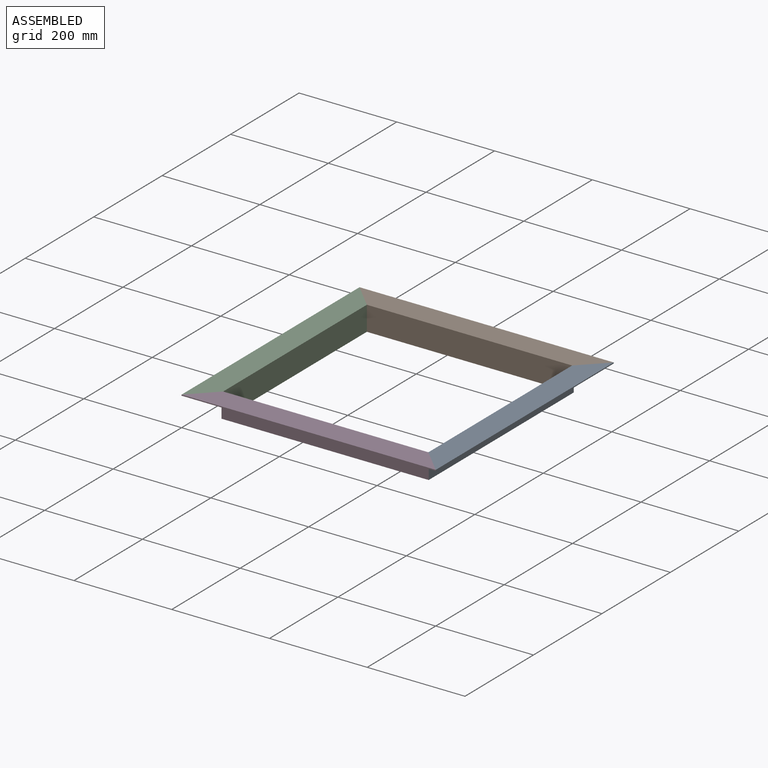
[diagram: assembled view]
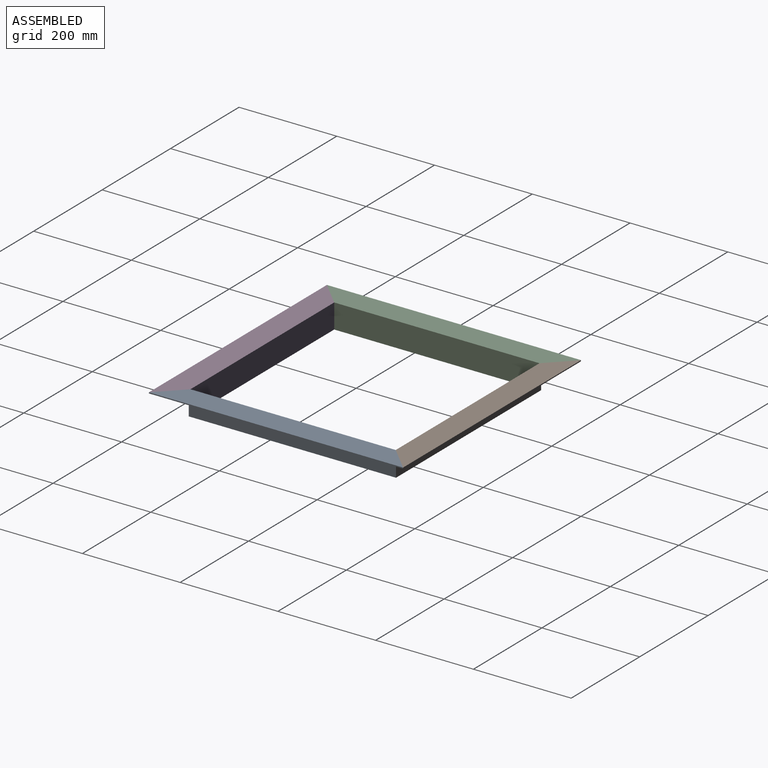
[diagram: assembled view, second angle]
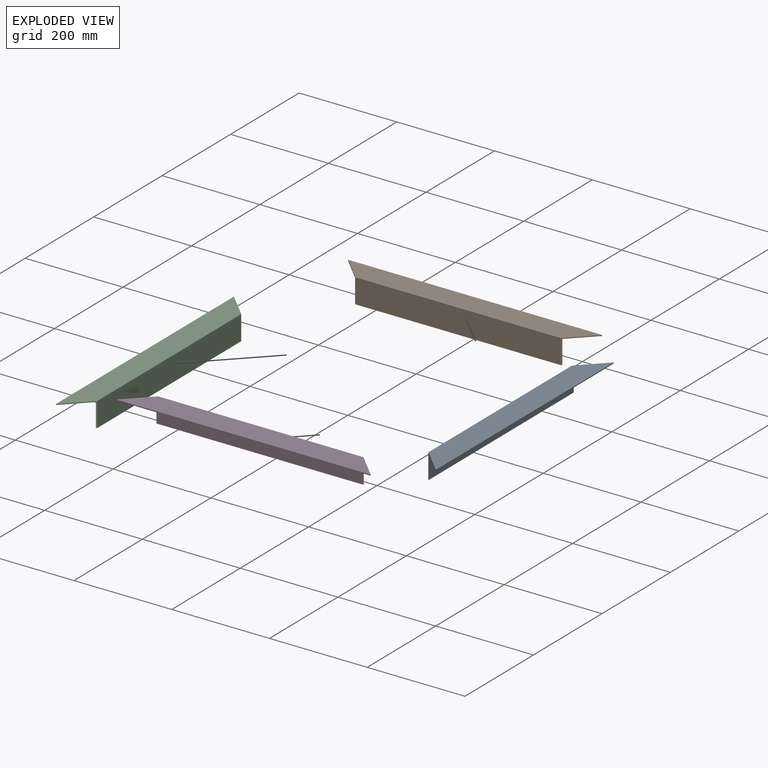
[diagram: exploded view]
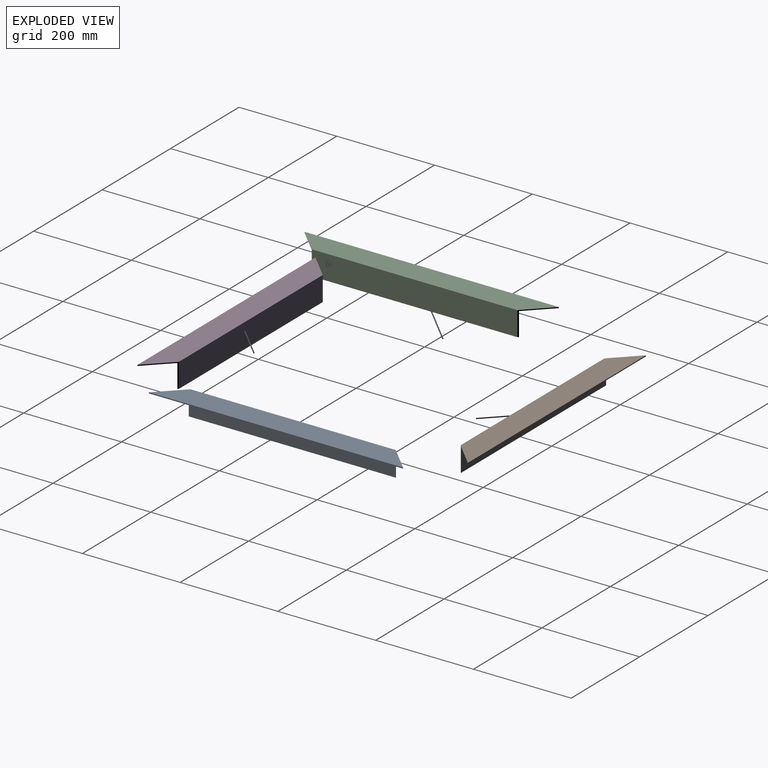
[diagram: exploded view, second angle]
ASSEMBLY  parts=4 mates=3
PART A: 8 faces, bbox 50x520x50 mm
  f0: plane 420x50mm, normal (1,0,0), area 21000mm2, adj f1,f4,f6,f7
  f1: plane 520x50mm, normal (0,0,1), area 23500mm2, adj f0,f5,f6,f7
  f2: plane 520x48mm, normal (0,0,-1), area 22656mm2, adj f3,f5,f6,f7
  f3: plane 424x48mm, normal (-1,0,0), area 20352mm2, adj f2,f4,f6,f7
  f4: plane 424x2mm, normal (0,0,-1), area 844mm2, adj f0,f3,f6,f7
  f5: plane 520x2mm, normal (-1,0,0), area 1040mm2, adj f1,f2,f6,f7
  f6: plane 50x50mm, normal (0.71,0.71,0), area 277.2mm2, adj f0,f1,f2,f3,f4,f5
  f7: plane 50x50mm, normal (0.71,-0.71,0), area 277.2mm2, adj f0,f1,f2,f3,f4,f5
PART B: same geometry as A
PART C: same geometry as A
PART D: same geometry as A
PLACE A rot(axis=(0,0,-1),180deg) t=(520,520,0)mm
PLACE B rot(axis=(0,0,-1),90deg) t=(0,520,0)mm
PLACE C at identity fixed
PLACE D rot(axis=(0,0,1),90deg) t=(520,0,0)mm
MATE fastened B.f7 <-> C.f6  axis (-0.71,-0.71,0) through (0,520,0)mm
MATE fastened A.f6 <-> D.f7  axis (-0.71,-0.71,0) through (520,0,0)mm
MATE fastened B.f6 <-> A.f7  axis (0.71,-0.71,0) through (520,520,0)mm
